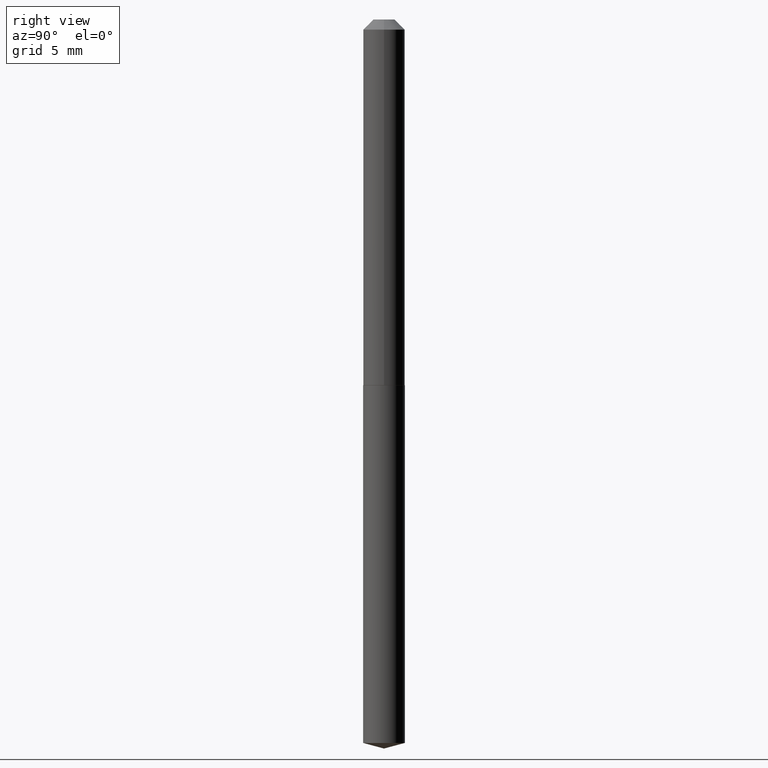
[diagram: clean part render]
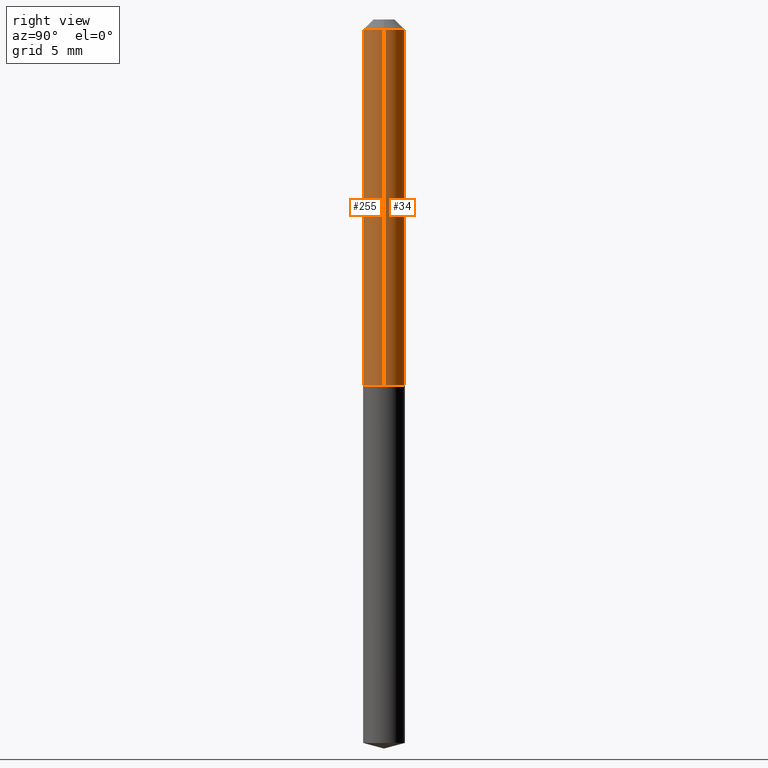
[diagram: same view with one multi-face feature highlighted, each face labeled with its STEP entity id]
A machine part, right view. The highlighted faces form ONE feature: a constant-radius fillet chain: 2 tangent blend faces with common blend radius 1.632 mm. The faces share edges in the B-rep.
Their STEP definitions:
[1] entity #34 (Cylinder):
#2 = CIRCLE ( 'NONE', #100, 0.06425000000000014033 ) ;
#6 = DIRECTION ( 'NONE',  ( -2.445468806185136597E-29, 3.491481338843145583E-15, 1.000000000000000000 ) ) ;
#9 = DIRECTION ( 'NONE',  ( 1.000000000000000000, -6.982962677686265922E-15, 4.876176775795935793E-29 ) ) ;
#17 = CIRCLE ( 'NONE', #343, 0.06425000000000000155 ) ;
#18 = CARTESIAN_POINT ( 'NONE',  ( -0.06425000000000014033, -3.481867242489202090E-15, -1.127999999999999892 ) ) ;
#28 = DIRECTION ( 'NONE',  ( 1.000000000000000000, -6.982962677686269077E-15, 0.000000000000000000 ) ) ;
#31 = VECTOR ( 'NONE', #332, 39.37007874015748143 ) ;
#34 = ADVANCED_FACE ( 'NONE', ( #244 ), #97, .T. ) ;
#35 = ORIENTED_EDGE ( 'NONE', *, *, #141, .T. ) ;
#62 = CARTESIAN_POINT ( 'NONE',  ( -0.06425000000000007094, 4.565237077258648735E-16, -3.160415795488780682E-30 ) ) ;
#82 = CARTESIAN_POINT ( 'NONE',  ( 0.06425000000000000155, -5.577641438801915909E-16, -0.03125000000000020123 ) ) ;
#89 = VERTEX_POINT ( 'NONE', #136 ) ;
#97 = CYLINDRICAL_SURFACE ( 'NONE', #134, 0.06425000000000007094 ) ;
#100 = AXIS2_PLACEMENT_3D ( 'NONE', #132, #6, #28 ) ;
#105 = ORIENTED_EDGE ( 'NONE', *, *, #157, .F. ) ;
#132 = CARTESIAN_POINT ( 'NONE',  ( 2.758488813376833799E-29, -3.938390950215067457E-15, -1.127999999999999892 ) ) ;
#134 = AXIS2_PLACEMENT_3D ( 'NONE', #210, #279, #9 ) ;
#136 = CARTESIAN_POINT ( 'NONE',  ( -0.06425000000000000155, -1.567226163301092518E-15, -0.03125000000000020123 ) ) ;
#140 = DIRECTION ( 'NONE',  ( -2.445468806185136597E-29, 3.491481338843145583E-15, 1.000000000000000000 ) ) ;
#141 = EDGE_CURVE ( 'NONE', #384, #331, #2, .T. ) ;
#142 = EDGE_LOOP ( 'NONE', ( #35, #355, #272, #105 ) ) ;
#146 = VERTEX_POINT ( 'NONE', #82 ) ;
#148 = DIRECTION ( 'NONE',  ( -2.445468806185136877E-29, 3.491481338843145188E-15, 1.000000000000000000 ) ) ;
#157 = EDGE_CURVE ( 'NONE', #384, #146, #390, .T. ) ;
#210 = CARTESIAN_POINT ( 'NONE',  ( 0.000000000000000000, 0.000000000000000000, 0.000000000000000000 ) ) ;
#232 = VECTOR ( 'NONE', #148, 39.37007874015748143 ) ;
#236 = CARTESIAN_POINT ( 'NONE',  ( 0.06425000000000014033, -4.387046302256411229E-15, -1.127999999999999892 ) ) ;
#244 = FACE_OUTER_BOUND ( 'NONE', #142, .T. ) ;
#272 = ORIENTED_EDGE ( 'NONE', *, *, #311, .F. ) ;
#279 = DIRECTION ( 'NONE',  ( -2.445468806185136597E-29, 3.491481338843145583E-15, 1.000000000000000000 ) ) ;
#311 = EDGE_CURVE ( 'NONE', #146, #89, #17, .T. ) ;
#318 = CARTESIAN_POINT ( 'NONE',  ( 7.642090019328601786E-31, -1.091087918388490144E-16, -0.03125000000000020123 ) ) ;
#331 = VERTEX_POINT ( 'NONE', #18 ) ;
#332 = DIRECTION ( 'NONE',  ( -2.445468806185136877E-29, 3.491481338843145188E-15, 1.000000000000000000 ) ) ;
#343 = AXIS2_PLACEMENT_3D ( 'NONE', #318, #140, #348 ) ;
#348 = DIRECTION ( 'NONE',  ( 1.000000000000000000, -6.982962677686265922E-15, 0.000000000000000000 ) ) ;
#355 = ORIENTED_EDGE ( 'NONE', *, *, #374, .T. ) ;
#367 = LINE ( 'NONE', #62, #31 ) ;
#374 = EDGE_CURVE ( 'NONE', #331, #89, #367, .T. ) ;
#381 = CARTESIAN_POINT ( 'NONE',  ( 0.06425000000000007094, -4.486553520413430819E-16, 3.132943578448892334E-30 ) ) ;
#384 = VERTEX_POINT ( 'NONE', #236 ) ;
#390 = LINE ( 'NONE', #381, #232 ) ;
[2] entity #255 (Cylinder):
#18 = CARTESIAN_POINT ( 'NONE',  ( -0.06425000000000014033, -3.481867242489202090E-15, -1.127999999999999892 ) ) ;
#31 = VECTOR ( 'NONE', #332, 39.37007874015748143 ) ;
#42 = ORIENTED_EDGE ( 'NONE', *, *, #374, .F. ) ;
#62 = CARTESIAN_POINT ( 'NONE',  ( -0.06425000000000007094, 4.565237077258648735E-16, -3.160415795488780682E-30 ) ) ;
#65 = ORIENTED_EDGE ( 'NONE', *, *, #90, .T. ) ;
#82 = CARTESIAN_POINT ( 'NONE',  ( 0.06425000000000000155, -5.577641438801915909E-16, -0.03125000000000020123 ) ) ;
#87 = CARTESIAN_POINT ( 'NONE',  ( 0.000000000000000000, 0.000000000000000000, 0.000000000000000000 ) ) ;
#89 = VERTEX_POINT ( 'NONE', #136 ) ;
#90 = EDGE_CURVE ( 'NONE', #331, #384, #167, .T. ) ;
#111 = FACE_OUTER_BOUND ( 'NONE', #358, .T. ) ;
#113 = CARTESIAN_POINT ( 'NONE',  ( 7.642090019328601786E-31, -1.091087918388490144E-16, -0.03125000000000020123 ) ) ;
#136 = CARTESIAN_POINT ( 'NONE',  ( -0.06425000000000000155, -1.567226163301092518E-15, -0.03125000000000020123 ) ) ;
#143 = CYLINDRICAL_SURFACE ( 'NONE', #224, 0.06425000000000007094 ) ;
#146 = VERTEX_POINT ( 'NONE', #82 ) ;
#148 = DIRECTION ( 'NONE',  ( -2.445468806185136877E-29, 3.491481338843145188E-15, 1.000000000000000000 ) ) ;
#157 = EDGE_CURVE ( 'NONE', #384, #146, #390, .T. ) ;
#163 = DIRECTION ( 'NONE',  ( -2.445468806185136597E-29, 3.491481338843145583E-15, 1.000000000000000000 ) ) ;
#167 = CIRCLE ( 'NONE', #342, 0.06425000000000014033 ) ;
#172 = DIRECTION ( 'NONE',  ( -2.445468806185136597E-29, 3.491481338843145583E-15, 1.000000000000000000 ) ) ;
#224 = AXIS2_PLACEMENT_3D ( 'NONE', #87, #163, #296 ) ;
#228 = ORIENTED_EDGE ( 'NONE', *, *, #157, .T. ) ;
#232 = VECTOR ( 'NONE', #148, 39.37007874015748143 ) ;
#233 = EDGE_CURVE ( 'NONE', #89, #146, #301, .T. ) ;
#236 = CARTESIAN_POINT ( 'NONE',  ( 0.06425000000000014033, -4.387046302256411229E-15, -1.127999999999999892 ) ) ;
#255 = ADVANCED_FACE ( 'NONE', ( #111 ), #143, .T. ) ;
#256 = CARTESIAN_POINT ( 'NONE',  ( 2.758488813376833799E-29, -3.938390950215067457E-15, -1.127999999999999892 ) ) ;
#292 = DIRECTION ( 'NONE',  ( 1.000000000000000000, -6.982962677686265922E-15, 0.000000000000000000 ) ) ;
#296 = DIRECTION ( 'NONE',  ( 1.000000000000000000, -6.982962677686265922E-15, 4.876176775795935793E-29 ) ) ;
#301 = CIRCLE ( 'NONE', #349, 0.06425000000000000155 ) ;
#305 = ORIENTED_EDGE ( 'NONE', *, *, #233, .F. ) ;
#331 = VERTEX_POINT ( 'NONE', #18 ) ;
#332 = DIRECTION ( 'NONE',  ( -2.445468806185136877E-29, 3.491481338843145188E-15, 1.000000000000000000 ) ) ;
#342 = AXIS2_PLACEMENT_3D ( 'NONE', #256, #345, #375 ) ;
#345 = DIRECTION ( 'NONE',  ( -2.445468806185136597E-29, 3.491481338843145583E-15, 1.000000000000000000 ) ) ;
#349 = AXIS2_PLACEMENT_3D ( 'NONE', #113, #172, #292 ) ;
#358 = EDGE_LOOP ( 'NONE', ( #42, #65, #228, #305 ) ) ;
#367 = LINE ( 'NONE', #62, #31 ) ;
#374 = EDGE_CURVE ( 'NONE', #331, #89, #367, .T. ) ;
#375 = DIRECTION ( 'NONE',  ( 1.000000000000000000, -6.982962677686269077E-15, 0.000000000000000000 ) ) ;
#381 = CARTESIAN_POINT ( 'NONE',  ( 0.06425000000000007094, -4.486553520413430819E-16, 3.132943578448892334E-30 ) ) ;
#384 = VERTEX_POINT ( 'NONE', #236 ) ;
#390 = LINE ( 'NONE', #381, #232 ) ;